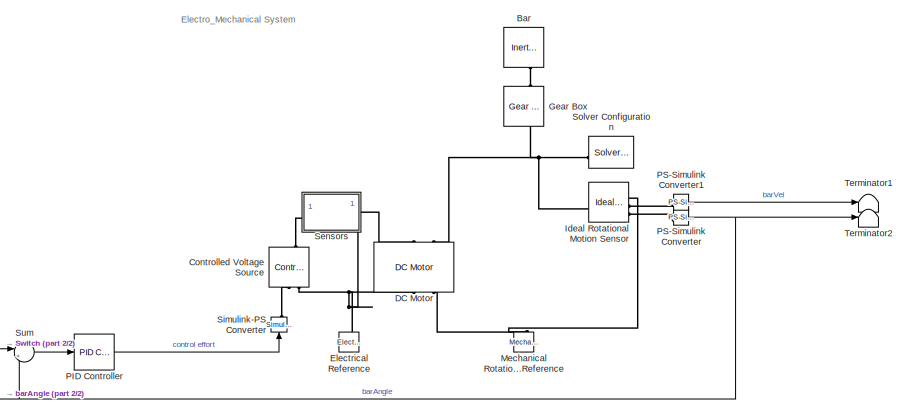
[diagram: root canvas - part 1/2, right side, full height]
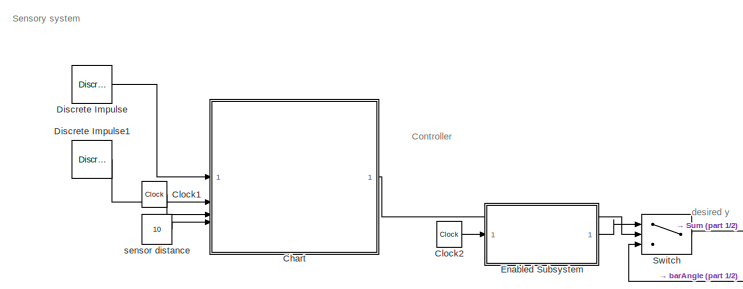
[diagram: root canvas - part 2/2, middle left region]
MODEL slx_9b9086545908
KIND model
CONFIG AbsTol = auto
CONFIG EnableMultiTasking = off
CONFIG FixedStep = auto
CONFIG MaxStep = auto
CONFIG MinStep = auto
CONFIG RelTol = 1e-3
CONFIG SampleTimeConstraint = Unconstrained
CONFIG SolverName = VariableStepAuto
CONFIG StartTime = 0.0
CONFIG StopTime = 20
BLOCK [Reference] Bar  REF=fl_lib/Mechanical/Rotational Elements/Inertia
  NameLocation = left
  SourceBlock = fl_lib/Mechanical/Rotational Elements/Inertia
  SourceType = Inertia
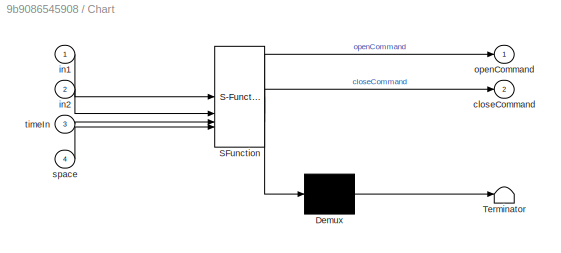
BLOCK [SubSystem] Chart
  ErrorFcn = Stateflow.Translate.translate
  PermitHierarchicalResolution = ExplicitOnly
  SFBlockType = Chart
  TreatAsAtomicUnit = on
BLOCK [Demux] Chart/ Demux 
  Outputs = 1
BLOCK [S-Function] Chart/ SFunction 
  EnableBusSupport = on
  FunctionName = sf_sfun
  PortCounts = [4 3]
  SFcnIsStateOwnerBlock = off
  SFunctionDeploymentMode = off
  Tag = Stateflow S-Function 3
BLOCK [Terminator] Chart/ Terminator 
BLOCK [Outport] Chart/closeCommand
  Port = 2
BLOCK [Inport] Chart/in1
BLOCK [Inport] Chart/in2
  Port = 2
BLOCK [Outport] Chart/openCommand
BLOCK [Inport] Chart/space
  Port = 4
BLOCK [Inport] Chart/timeIn
  Port = 3
BLOCK [Clock] Clock1
BLOCK [Clock] Clock2
BLOCK [Reference] Controlled Voltage Source  REF=fl_lib/Electrical/Electrical Sources/Controlled Voltage
Source
  NameLocation = right
  SourceBlock = fl_lib/Electrical/Electrical Sources/Controlled Voltage\nSource
  SourceType = Controlled Voltage\nSource
BLOCK [Reference] DC Motor  REF=ee_lib/Electromechanical/Brushed Motors/DC Motor
  AttributesFormatString = Maxon:RE_65_388987_48
  NameLocation = right
  SourceBlock = ee_lib/Electromechanical/Brushed Motors/DC Motor
  SourceType = DC Motor
BLOCK [Reference] Discrete Impulse  REF=dspsrcs4/Discrete 
Impulse
  SourceBlock = dspsrcs4/Discrete \nImpulse
  SourceType = Discrete Impulse
BLOCK [Reference] Discrete Impulse1  REF=dspsrcs4/Discrete 
Impulse
  SourceBlock = dspsrcs4/Discrete \nImpulse
  SourceType = Discrete Impulse
BLOCK [Reference] Electrical Reference  REF=fl_lib/Electrical/Electrical Elements/Electrical Reference
  NameLocation = right
  SourceBlock = fl_lib/Electrical/Electrical Elements/Electrical Reference
  SourceType = Electrical Reference
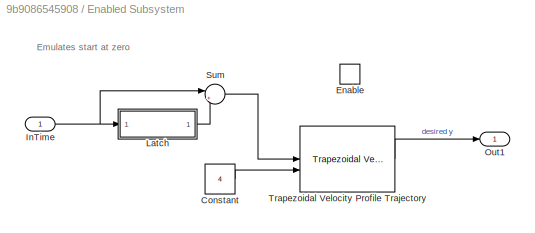
BLOCK [SubSystem] Enabled Subsystem
  TreatAsAtomicUnit = on
BLOCK [Constant] Enabled Subsystem/Constant
  Value = 4
BLOCK [EnablePort] Enabled Subsystem/Enable
BLOCK [Inport] Enabled Subsystem/InTime
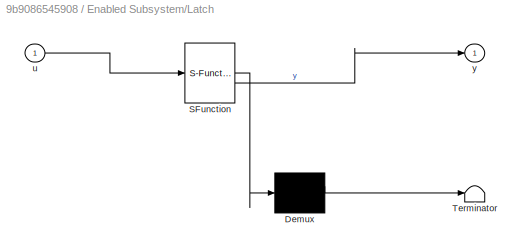
BLOCK [SubSystem] Enabled Subsystem/Latch
  ErrorFcn = Stateflow.Translate.translate
  PermitHierarchicalResolution = ExplicitOnly
  SFBlockType = MATLAB Function
  TreatAsAtomicUnit = on
BLOCK [Demux] Enabled Subsystem/Latch/ Demux 
  Outputs = 1
BLOCK [S-Function] Enabled Subsystem/Latch/ SFunction 
  EnableBusSupport = on
  FunctionName = sf_sfun
  PortCounts = [1 2]
  SFcnIsStateOwnerBlock = off
  SFunctionDeploymentMode = off
  Tag = Stateflow S-Function 2
BLOCK [Terminator] Enabled Subsystem/Latch/ Terminator 
BLOCK [Inport] Enabled Subsystem/Latch/u
BLOCK [Outport] Enabled Subsystem/Latch/y
BLOCK [Outport] Enabled Subsystem/Out1
BLOCK [Sum] Enabled Subsystem/Sum
  Inputs = |+-
BLOCK [Reference] Enabled Subsystem/Trapezoidal Velocity Profile Trajectory  REF=robotcorelib/Trapezoidal Velocity Profile Trajectory
  LibrarySourceBlock = robotutilslib/Trapezoidal Velocity Profile Trajectory
  SourceBlock = robotcorelib/Trapezoidal Velocity Profile Trajectory
  SourceType = robotics.slcore.internal.block.TrapVelTrajSys
BLOCK [Reference] Gear Box  REF=fl_lib/Mechanical/Mechanisms/Gear Box
  NameLocation = right
  SourceBlock = fl_lib/Mechanical/Mechanisms/Gear Box
  SourceType = Gear Box
BLOCK [Reference] Ideal Rotational Motion Sensor  REF=fl_lib/Mechanical/Mechanical Sensors/Ideal Rotational
Motion Sensor
  SourceBlock = fl_lib/Mechanical/Mechanical Sensors/Ideal Rotational\nMotion Sensor
  SourceType = Ideal Rotational\nMotion Sensor
BLOCK [Reference] Mechanical Rotational Reference  REF=fl_lib/Mechanical/Rotational Elements/Mechanical
Rotational Reference
  NameLocation = right
  SourceBlock = fl_lib/Mechanical/Rotational Elements/Mechanical\nRotational Reference
  SourceType = Mechanical\nRotational Reference
BLOCK [Reference] PID Controller  REF=slpidlib/PID Controller
  LibrarySourceBlock = simulink/Continuous/PID Controller
  SourceBlock = slpidlib/PID Controller
  SourceType = PID 1dof
BLOCK [Reference] PS-Simulink Converter  REF=nesl_utility/PS-Simulink
Converter
  SourceBlock = nesl_utility/PS-Simulink\nConverter
  SourceType = PS-Simulink\nConverter
BLOCK [Reference] PS-Simulink Converter1  REF=nesl_utility/PS-Simulink
Converter
  SourceBlock = nesl_utility/PS-Simulink\nConverter
  SourceType = PS-Simulink\nConverter
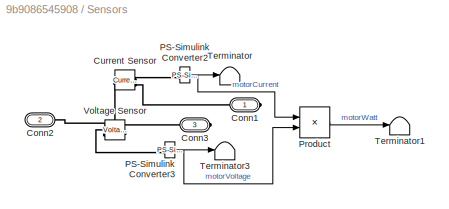
BLOCK [SubSystem] Sensors
BLOCK [PMIOPort] Sensors/Conn1
  Side = Right
BLOCK [PMIOPort] Sensors/Conn2
  Port = 2
  Side = Left
BLOCK [PMIOPort] Sensors/Conn3
  Port = 3
  Side = Right
BLOCK [Reference] Sensors/Current Sensor  REF=fl_lib/Electrical/Electrical Sensors/Current Sensor
  SourceBlock = fl_lib/Electrical/Electrical Sensors/Current Sensor
  SourceType = Current Sensor
BLOCK [Reference] Sensors/PS-Simulink Converter2  REF=nesl_utility/PS-Simulink
Converter
  SourceBlock = nesl_utility/PS-Simulink\nConverter
  SourceType = PS-Simulink\nConverter
BLOCK [Reference] Sensors/PS-Simulink Converter3  REF=nesl_utility/PS-Simulink
Converter
  SourceBlock = nesl_utility/PS-Simulink\nConverter
  SourceType = PS-Simulink\nConverter
BLOCK [Product] Sensors/Product
BLOCK [Terminator] Sensors/Terminator
BLOCK [Terminator] Sensors/Terminator1
BLOCK [Terminator] Sensors/Terminator3
BLOCK [Reference] Sensors/Voltage Sensor  REF=fl_lib/Electrical/Electrical Sensors/Voltage Sensor
  NameLocation = top
  SourceBlock = fl_lib/Electrical/Electrical Sensors/Voltage Sensor
  SourceType = Voltage Sensor
BLOCK [Reference] Simulink-PS Converter  REF=nesl_utility/Simulink-PS
Converter
  NameLocation = right
  SourceBlock = nesl_utility/Simulink-PS\nConverter
  SourceType = Simulink-PS\nConverter
BLOCK [Reference] Solver Configuration  REF=nesl_utility/Solver
Configuration
  NameLocation = top
  SourceBlock = nesl_utility/Solver\nConfiguration
  SourceType = Solver\nConfiguration
BLOCK [Sum] Sum
  Inputs = |+-
BLOCK [Switch] Switch
  Criteria = u2 > Threshold
  InputSameDT = off
  SaturateOnIntegerOverflow = off
  Threshold = 0.1
BLOCK [Terminator] Terminator1
BLOCK [Terminator] Terminator2
BLOCK [Constant] sensor distance
  Value = 10
ANNOTATION (root): Controller
ANNOTATION (root): Electro_Mechanical System
ANNOTATION (root): Sensory system
ANNOTATION (root): desired y
ANNOTATION Enabled Subsystem: Emulates start at zero
NET Chart:1 -> Enabled Subsystem:enable, Switch:2
LINE Clock1:1 -> Chart:3
LINE Clock2:1 -> Enabled Subsystem:1
LINE Discrete Impulse1:1 -> Chart:2
LINE Discrete Impulse:1 -> Chart:1
LINE Enabled Subsystem/Constant:1 -> Enabled Subsystem/Trapezoidal Velocity Profile Trajectory:2
NET Enabled Subsystem/InTime:1 -> Enabled Subsystem/Latch:1, Enabled Subsystem/Sum:1
LINE Enabled Subsystem/Latch:1 -> Enabled Subsystem/Sum:2
LINE Enabled Subsystem/Sum:1 -> Enabled Subsystem/Trapezoidal Velocity Profile Trajectory:1
LINE Enabled Subsystem/Trapezoidal Velocity Profile Trajectory:1 -> Enabled Subsystem/Out1:1
LINE Enabled Subsystem:1 -> Switch:1
LINE PID Controller:1 -> Simulink-PS Converter:1
LINE PS-Simulink Converter1:1 -> Terminator1:1
NET PS-Simulink Converter:1 -> Sum:2, Switch:3, Terminator2:1
NET Sensors/PS-Simulink Converter2:1 -> Sensors/Product:1, Sensors/Terminator:1
NET Sensors/PS-Simulink Converter3:1 -> Sensors/Product:2, Sensors/Terminator3:1
LINE Sensors/Product:1 -> Sensors/Terminator1:1
LINE Sum:1 -> PID Controller:1
LINE Switch:1 -> Sum:1
LINE sensor distance:1 -> Chart:4
PLINE Bar:LConn1 -- Gear Box:RConn1
PLINE Controlled Voltage Source:LConn1 -- Sensors:LConn1
PLINE Controlled Voltage Source:RConn1 -- Simulink-PS Converter:RConn1
PNET net1: Controlled Voltage Source:RConn2 -- DC Motor:RConn1 -- Electrical Reference:LConn1 -- Sensors:RConn2
PLINE DC Motor:LConn1 -- Sensors:RConn1
PNET net2: DC Motor:LConn2 -- Gear Box:LConn1 -- Ideal Rotational Motion Sensor:LConn1 -- Solver Configuration:RConn1
PNET net3: DC Motor:RConn2 -- Ideal Rotational Motion Sensor:RConn1 -- Mechanical Rotational Reference:LConn1
PLINE Ideal Rotational Motion Sensor:RConn2 -- PS-Simulink Converter1:LConn1
PLINE Ideal Rotational Motion Sensor:RConn3 -- PS-Simulink Converter:LConn1
PLINE Sensors/Conn1:RConn1 -- Sensors/Current Sensor:RConn2
PNET net4: Sensors/Conn2:RConn1 -- Sensors/Current Sensor:LConn1 -- Sensors/Voltage Sensor:LConn1
PLINE Sensors/Conn3:RConn1 -- Sensors/Voltage Sensor:RConn2
PLINE Sensors/Current Sensor:RConn1 -- Sensors/PS-Simulink Converter2:LConn1
PLINE Sensors/PS-Simulink Converter3:LConn1 -- Sensors/Voltage Sensor:RConn1
note: NET lines group one-source signal fan-out (src -> all destinations, sorted); 1:1 wires keep LINE; PNET lines group multi-terminal physical nets as a canonical sorted terminal list (undirected conserving connections); 2-terminal nets keep the pairwise PLINE form
CHART Enabled
Subsystem/Latch states=1 transitions=1
  STATE_LABEL 'eML_blk_kernel()'
  STATE_LABEL 'SCRIPT:\nfunction y = fcn(u)\npersistent firstValue;\nif(isempty(firstValue))\nfirstValue = u;\nend\n\ny = firstValue;\n'
CHART Chart states=5 transitions=5
  STATE_LABEL 'SecondCoilOn\nentry:\ntTwo = timeIn;\ndeltaT = tTwo - tOne;\nv = space/deltaT;'
  STATE_LABEL 'FirstCoilOn\nentry:\ntOne = timeIn;\ncloseCommand = 1;\n'
  STATE_LABEL 'On\n'
  STATE_LABEL 'OpenBar\nentry:\nopenCommand = 1;\ncloseCommand = 0;\n'
  STATE_LABEL 'callPolice\n'
CHART  states=0 transitions=0
CHART  states=0 transitions=0
